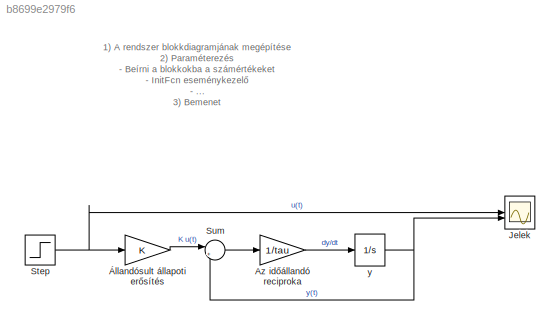
MODEL slx_b8699e2979f6
KIND model
CONFIG AbsTol = auto
CONFIG EnableMultiTasking = off
CONFIG FixedStep = auto
CONFIG InitFcn = K = 10;\ntau = 500e-3;\n\ny_0 = -2;
CONFIG MaxStep = tau/25
CONFIG MinStep = auto
CONFIG RelTol = 1e-3
CONFIG SampleTimeConstraint = Unconstrained
CONFIG SolverName = VariableStepAuto
CONFIG StartTime = 0.0
CONFIG StopTime = 10.0
BLOCK [Gain] Az időállandó reciproka
  Gain = 1/tau
BLOCK [Scope] Jelek
  ActiveDisplayYMaximum = 1.1490782384623073
  ActiveDisplayYMinimum = -10.341704146160767
  Floating = off
  GraphicalSettings = {"Style":{"BackgroundColor":[0.12941176470588237,0.12941176470588237,0.12941176470588237],"AxesColor":[0.07058823529411765,0.07058823529411765,0.07058823529411765],"LabelsColor":[0.8509803921568627,0.8509803921568627,0.8509803921568627],"PreserveColors":false,"Visible":[true,true],"LineStyle":["-","-"],"LineWidth":[3,3],"BarWidth":[0.9,0.9],"LineColor":["auto","auto"],"LineFaceAlpha":[1,1],"LineEd...<+2138ch>
  MultipleDisplayCache = [{"MaxYLimMag":10.341704146160767,"MaxYLimReal":1.1490782384623073,"MinYLimMag":0,"MinYLimReal":-10.341704146160767,"PlotAsMagnitudePhase":false,"ShowGrid":true,"ShowLegend":true,"Title":"%<SignalLabel>","YLabel":""}]
  NumInputPorts = 2
  ScopeFrameLocation = window
  ShowLegend = on
  WasSavedAsWebScope = on
  WindowPosition = [110.000000,190.000000,1107.000000,702.000000,]
BLOCK [Step] Step
  After = -1
  SampleTime = 0
  Time = 5
BLOCK [Sum] Sum
  Inputs = |+-
BLOCK [Integrator] y
  InitialCondition = y_0
BLOCK [Gain] Állandósult állapoti erősítés
  Gain = K
ANNOTATION (root): 1) A rendszer blokkdiagramjának megépítése 2) Paraméterezés - Beírni a blokkokba a számértékeket - InitFcn eseménykezelő - ... 3) Bemenet 4) Időzítés - A szimuláció hossza. - A megengedett legnagyobb lépésköz. 5) Megjelenítés
LINE Az időállandó reciproka:1 -> y:1
NET Step:1 -> Jelek:1, Állandósult állapoti erősítés:1
LINE Sum:1 -> Az időállandó reciproka:1
NET y:1 -> Jelek:2, Sum:2
LINE Állandósult állapoti erősítés:1 -> Sum:1
note: NET lines group one-source signal fan-out (src -> all destinations, sorted); 1:1 wires keep LINE
